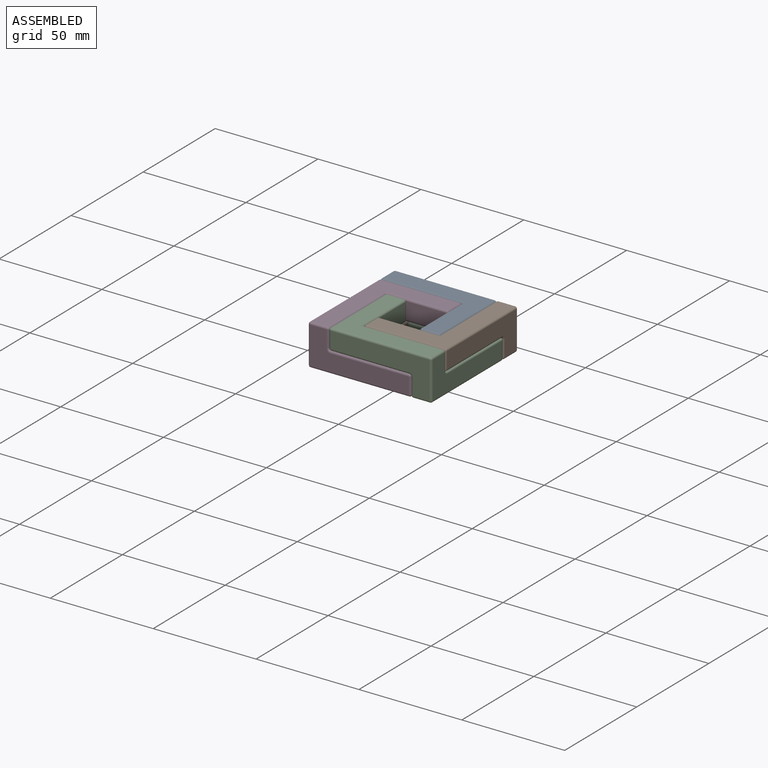
[diagram: assembled view]
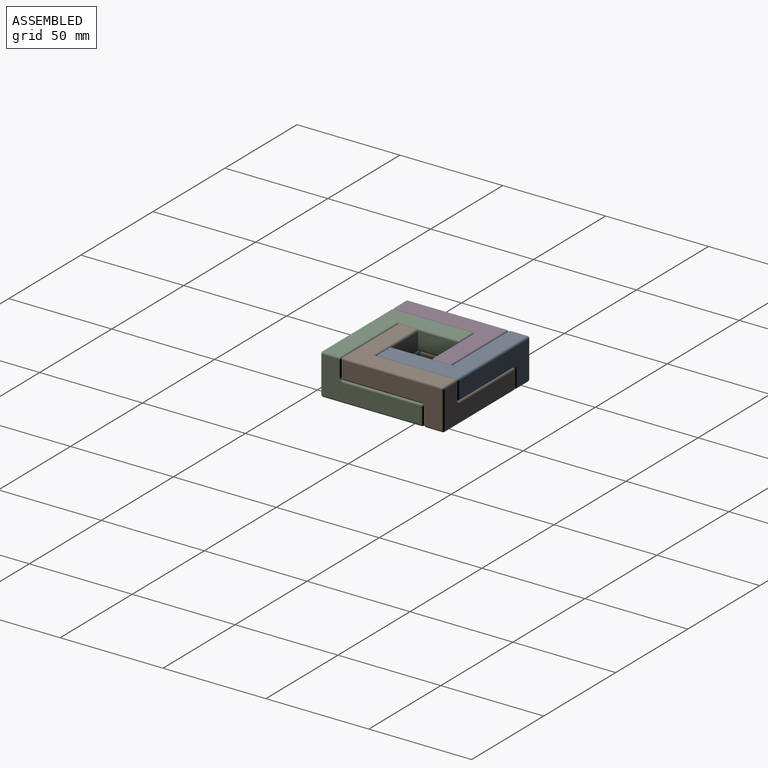
[diagram: assembled view, second angle]
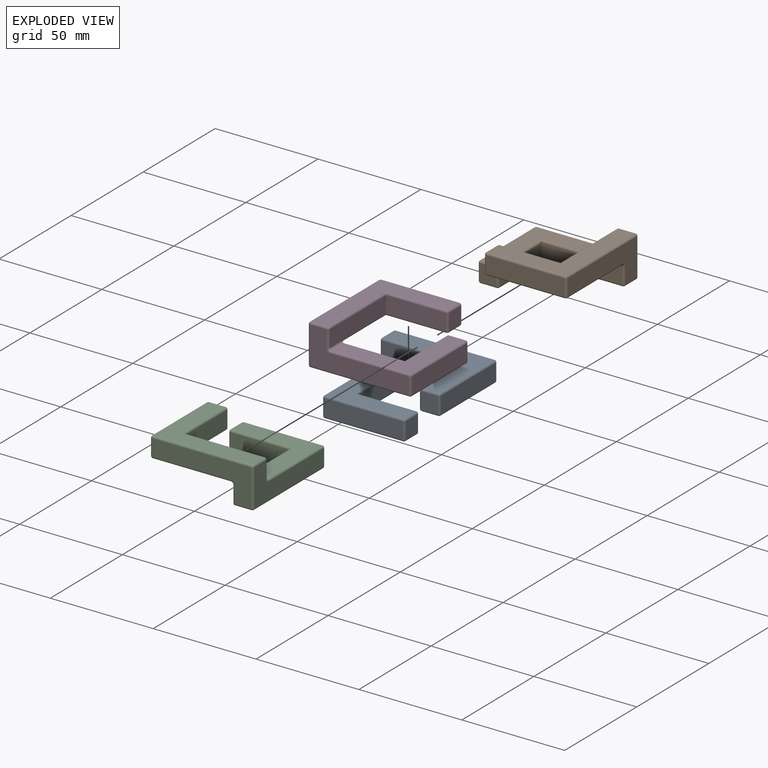
[diagram: exploded view]
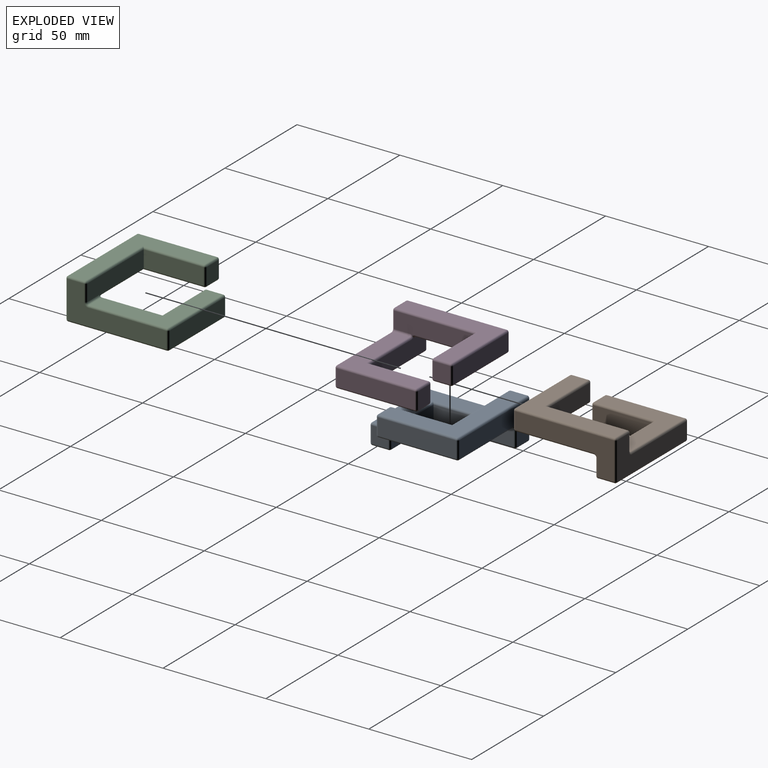
[diagram: exploded view, second angle]
ASSEMBLY  parts=4 mates=9
PART A: 67 faces, bbox 50x50x20 mm
  f0: plane 37.99x8mm, normal (-1,0,0), area 303.9mm2, adj f27,f33,f41,f42
  f1: plane 39.03x8.64mm, normal (0,1,0), area 312.4mm2, adj f2,f14,f16,f61,f64,f65,f66
  f2: plane 28.99x8mm, normal (1,0,0), area 231.9mm2, adj f1,f35,f50,f58
  f3: plane 8x8mm, normal (0,1,0), area 64mm2, adj f33,f34,f49,f50
  f4: plane 37.99x8mm, normal (0,1,0), area 303.9mm2, adj f37,f38,f51,f52
  f5: plane 28.99x8mm, normal (0,-1,0), area 231.9mm2, adj f6,f19,f21,f22
  f6: plane 39.03x8.64mm, normal (-1,0,0), area 312.4mm2, adj f5,f15,f16,f17,f24,f25,f66
  f7: plane 8x8mm, normal (-1,0,0), area 64mm2, adj f22,f23,f36,f37
  f8: plane 48x18mm, normal (0,-1,0), area 464.9mm2, adj f20,f25,f26,f40,f41,f53,f54
  f9: plane 48x18mm, normal (1,0,0), area 464.9mm2, adj f39,f52,f53,f59,f60,f62,f64
  f10: plane 48x37.99mm, normal (0,0,1), area 623.9mm2, adj f42,f49,f54,f58,f60,f61
  f11: plane 48x37.99mm, normal (0,0,-1), area 623.9mm2, adj f19,f23,f24,f38,f39,f40
  f12: plane 38x37.99mm, normal (0,0,1), area 543.9mm2, adj f14,f17,f21,f36,f51,f59
  f13: plane 38x37.99mm, normal (0,0,-1), area 543.9mm2, adj f15,f26,f27,f34,f35,f65
  f14: cylinder r=1mm len=8mm, axis (-1,0,0), area 12.6mm2, adj f1,f12,f16,f62
  f15: cylinder r=1mm len=8mm, axis (0,-1,0), area 12.6mm2, adj f6,f13,f20,f66
  f16: torus R=2mm, axis (-1,0,0), area 2.1mm2, adj f1,f6,f14,f17,f66
  f17: cylinder r=1mm len=30mm, axis (0,1,0), area 46.1mm2, adj f6,f12,f16,f21
  f18: sphere r=1mm, area 1.6mm2, adj f19,f22,f23
  f19: cylinder r=1mm len=29.99mm, axis (1,0,0), area 46.1mm2, adj f5,f11,f18,f24
  f20: torus R=2mm, axis (0,1,0), area 3.4mm2, adj f8,f15,f25,f26
  f21: cylinder r=1mm len=29.99mm, axis (-1,0,0), area 46.1mm2, adj f5,f12,f17,f29
  f22: cylinder r=1mm len=8mm, axis (0,0,-1), area 12.6mm2, adj f5,f7,f18,f29
  f23: cylinder r=1mm len=8mm, axis (0,1,0), area 12.6mm2, adj f7,f11,f18,f30
  f24: cylinder r=1mm len=40mm, axis (0,-1,0), area 61.8mm2, adj f6,f11,f19,f31
  f25: cylinder r=1mm len=8mm, axis (0,0,1), area 12.6mm2, adj f6,f8,f20,f31
  f26: cylinder r=1mm len=38mm, axis (-1,0,0), area 59.7mm2, adj f8,f13,f20,f32
  f27: cylinder r=1mm len=37.99mm, axis (0,-1,0), area 59.7mm2, adj f0,f13,f28,f32
  f28: sphere r=1mm, area 1.6mm2, adj f27,f33,f34
  f29: sphere r=1mm, area 1.6mm2, adj f21,f22,f36
  f30: sphere r=1mm, area 1.6mm2, adj f23,f37,f38
  f31: sphere r=1mm, area 1.6mm2, adj f24,f25,f40
  f32: sphere r=1mm, area 1.6mm2, adj f26,f27,f41
  f33: cylinder r=1mm len=8mm, axis (0,0,-1), area 12.6mm2, adj f0,f3,f28,f43
  f34: cylinder r=1mm len=8mm, axis (-1,0,0), area 12.6mm2, adj f3,f13,f28,f44
  f35: cylinder r=1mm len=29.99mm, axis (0,1,0), area 46.1mm2, adj f2,f13,f44,f65
  f36: cylinder r=1mm len=8mm, axis (0,1,0), area 12.6mm2, adj f7,f12,f29,f45
  f37: cylinder r=1mm len=8mm, axis (0,0,1), area 12.6mm2, adj f4,f7,f30,f45
  f38: cylinder r=1mm len=37.99mm, axis (-1,0,0), area 59.7mm2, adj f4,f11,f30,f46
  f39: cylinder r=1mm len=48mm, axis (0,1,0), area 75.4mm2, adj f9,f11,f46,f47
  f40: cylinder r=1mm len=8mm, axis (1,0,0), area 12.6mm2, adj f8,f11,f31,f47
  f41: cylinder r=1mm len=8mm, axis (0,0,1), area 12.6mm2, adj f0,f8,f32,f48
  f42: cylinder r=1mm len=37.99mm, axis (0,1,0), area 59.7mm2, adj f0,f10,f43,f48
  f43: sphere r=1mm, area 1.6mm2, adj f33,f42,f49
  f44: sphere r=1mm, area 1.6mm2, adj f34,f35,f50
  f45: sphere r=1mm, area 1.6mm2, adj f36,f37,f51
  f46: sphere r=1mm, area 1.6mm2, adj f38,f39,f52
  f47: sphere r=1mm, area 1.6mm2, adj f39,f40,f53
  f48: sphere r=1mm, area 1.6mm2, adj f41,f42,f54
  f49: cylinder r=1mm len=8mm, axis (-1,0,0), area 12.6mm2, adj f3,f10,f43,f55
  f50: cylinder r=1mm len=8mm, axis (0,0,1), area 12.6mm2, adj f2,f3,f44,f55
  f51: cylinder r=1mm len=37.99mm, axis (1,0,0), area 59.7mm2, adj f4,f12,f45,f56
  f52: cylinder r=1mm len=8mm, axis (0,0,1), area 12.6mm2, adj f4,f9,f46,f56
  f53: cylinder r=1mm len=18mm, axis (0,0,-1), area 28.3mm2, adj f8,f9,f47,f57
  f54: cylinder r=1mm len=48mm, axis (-1,0,0), area 75.4mm2, adj f8,f10,f48,f57
  f55: sphere r=1mm, area 1.6mm2, adj f49,f50,f58
  f56: sphere r=1mm, area 1.6mm2, adj f51,f52,f59
  f57: sphere r=1mm, area 1.6mm2, adj f53,f54,f60
  f58: cylinder r=1mm len=29.99mm, axis (0,-1,0), area 46.1mm2, adj f2,f10,f55,f61
  f59: cylinder r=1mm len=38mm, axis (0,-1,0), area 59.7mm2, adj f9,f12,f56,f62
  f60: cylinder r=1mm len=8mm, axis (0,-1,0), area 12.6mm2, adj f9,f10,f57,f63
  f61: cylinder r=1mm len=40mm, axis (1,0,0), area 61.8mm2, adj f1,f10,f58,f63
  f62: torus R=2mm, axis (-1,0,0), area 3.4mm2, adj f9,f14,f59,f64
  f63: sphere r=1mm, area 1.6mm2, adj f60,f61,f64
  f64: cylinder r=1mm len=8mm, axis (0,0,-1), area 12.6mm2, adj f1,f9,f62,f63
  f65: cylinder r=1mm len=30mm, axis (-1,0,0), area 46.1mm2, adj f1,f13,f35,f66
  f66: torus R=2mm, axis (0,1,0), area 2.1mm2, adj f1,f6,f15,f16,f65
PART B: same geometry as A
PART C: same geometry as A
PART D: same geometry as A
PLACE A rot(axis=(0,0,-1),180deg) t=(-56.86,48.61,63.17)mm
PLACE B rot(axis=(0,0,1),90deg) t=(-46.86,-1.38,63.17)mm
PLACE C t=(-96.85,-11.38,63.17)mm
PLACE D rot(axis=(0,0,-1),90deg) t=(-106.85,38.61,63.17)mm
MATE planar A.f3 <-> B.f2  axis (0,-1,0) through (-61.86,8.62,78.17)mm
MATE planar B.f12 <-> A.f13  axis (0,0,1) through (-76.86,47.62,73.17)mm
MATE planar B.f0 <-> C.f1  axis (0,-1,0) through (-66.85,-1.38,78.17)mm
MATE planar A.f12 <-> D.f13  axis (0,0,1) through (-105.86,18.61,73.17)mm
MATE planar B.f13 <-> C.f12  axis (0,0,-1) through (-47.86,18.62,73.17)mm
MATE planar D.f3 <-> A.f2  axis (1,0,0) through (-66.86,33.61,78.17)mm
MATE planar A.f1 <-> D.f0  axis (0,-1,0) through (-86.37,38.61,78.16)mm
MATE planar B.f3 <-> C.f2  axis (-1,0,0) through (-86.85,3.62,78.17)mm
MATE planar B.f1 <-> A.f0  axis (-1,0,0) through (-56.86,28.13,78.16)mm
